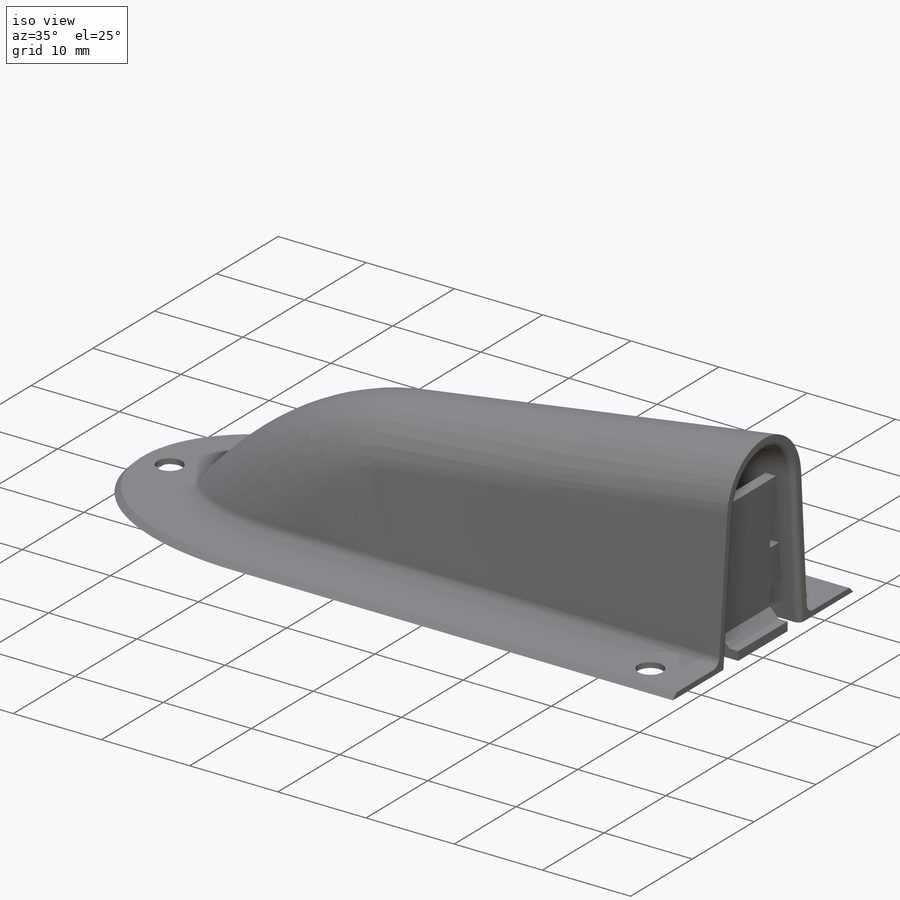
[diagram: iso view]
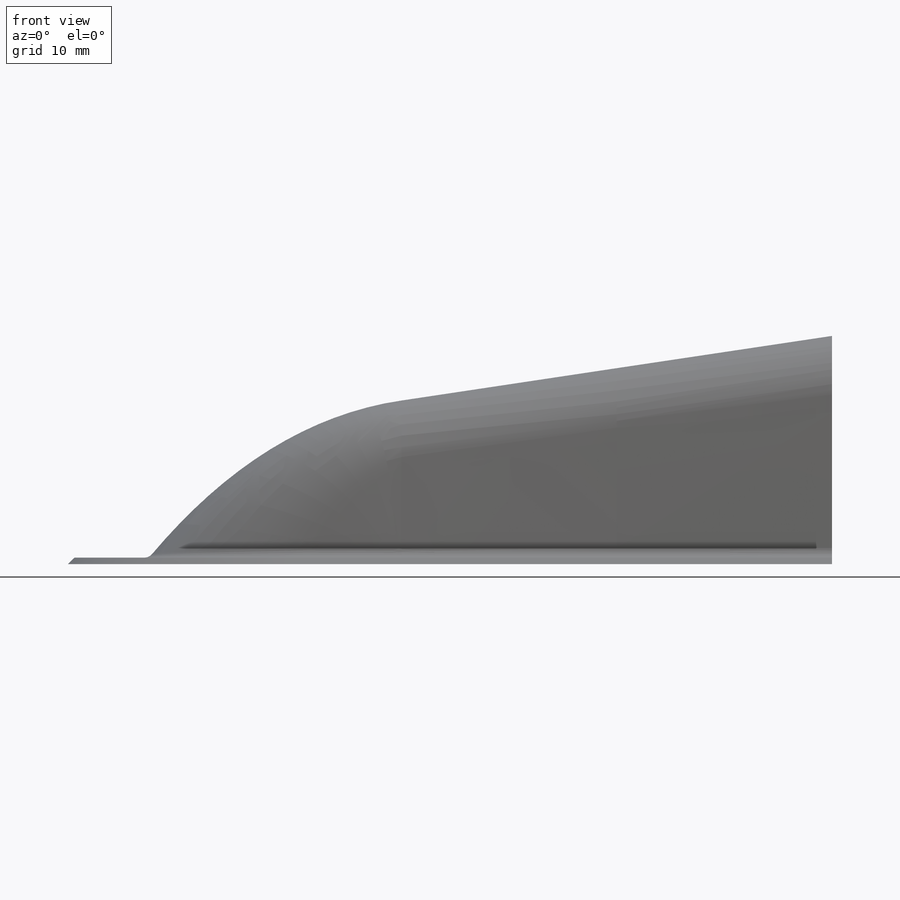
[diagram: front view]
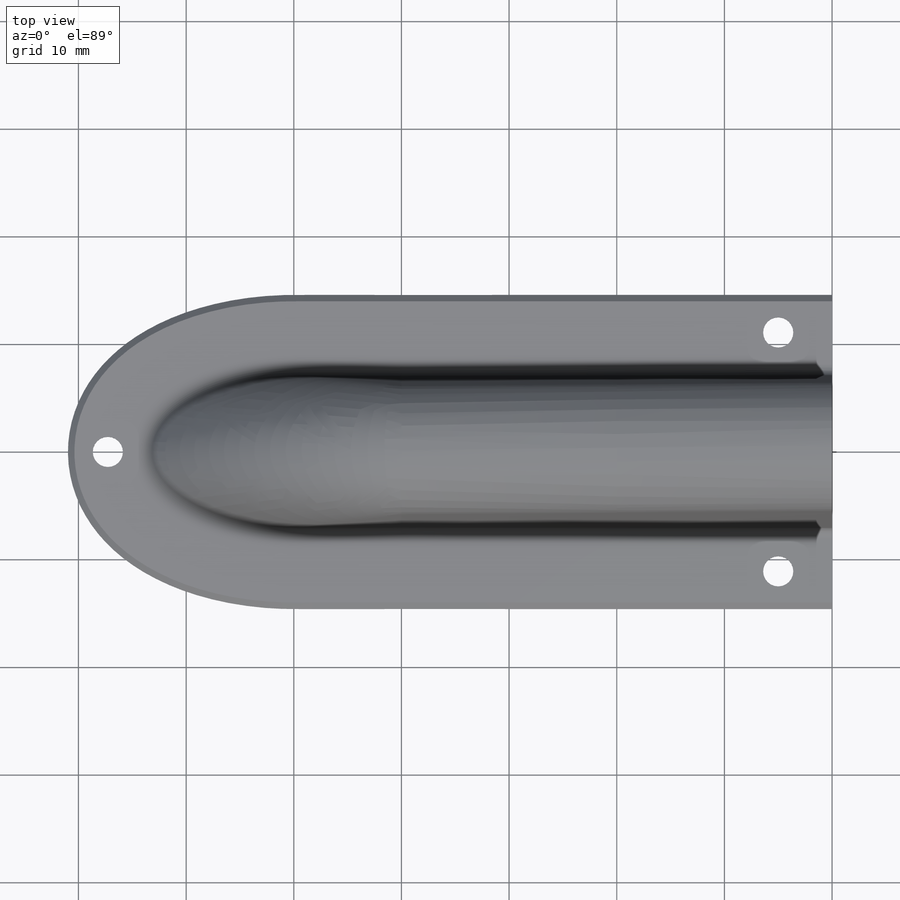
[diagram: top view]
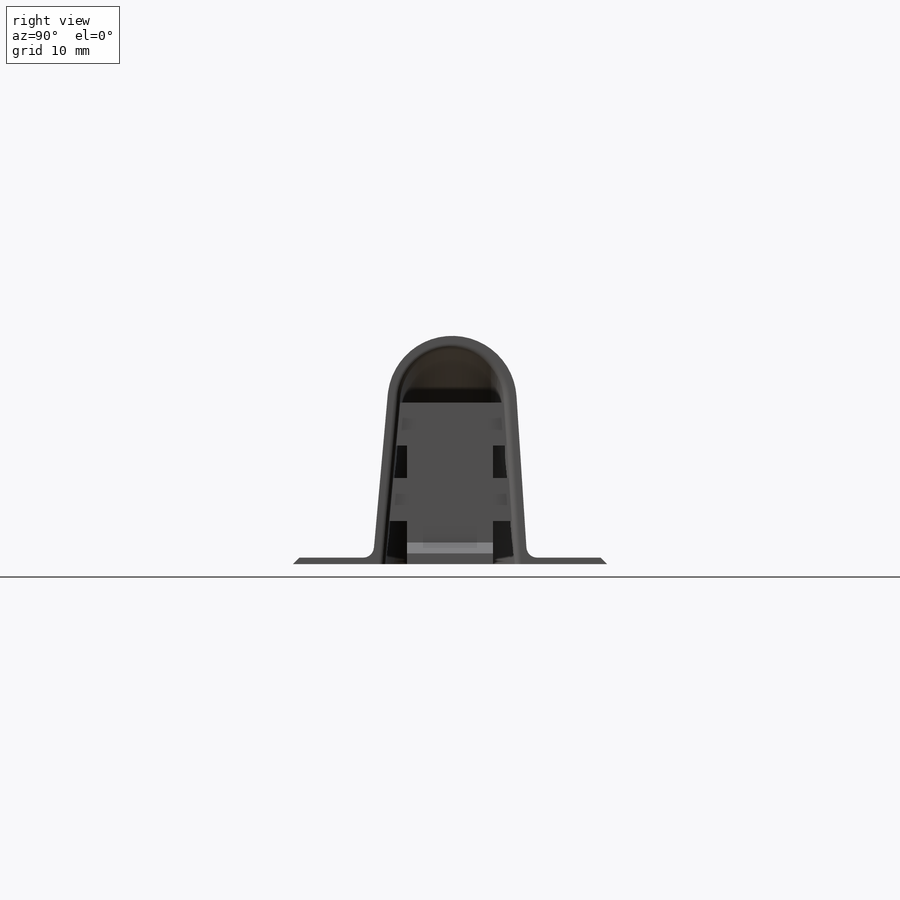
[diagram: right view]
SOLIDWORKS PART (.sldprt)
format: sldprt  version: not decoded by parser v0  size: 556,544 bytes
history: native  units: mm
features: sketch x10, extrude x4, chamfer x2, fillet x2, material x1, plane x1, shell x1, cut_extrude x1 (+12 scaffold rows collapsed)
feature tree (34):
  scaffold x12  (default folders/planes/origin — collapsed)
  material  "Material <not specified>"
  sketch  "Sketch1"  dims[c1.D1=12.4mm c1.D4=6.2mm c2.D1=21.2mm c2.D2=14.4mm c3.D1=6.2mm c3.D3=15.8mm c3.D4=~18.02704mm c4.D3=24.0mm c4.D1=10.0mm c5.D3=22.0mm]
  sketch  "Sketch2"  dims[c1.D1=16.2mm c1.D2=~11.916395mm c1.D3=~5.958198mm c2.D1=8.0mm c2.D2=9.2mm c2.D3=~15.366386mm]
  plane  "Plane1"  Offset=40mm
  sketch  "Sketch3"  dims[D1=21.2mm D2=15.2mm D3=~9.096953mm]
  sketch  "Sketch4"  dims[D1=~67.497694mm]
  sketch  "Sketch2<3>"
  shell  "Shell3"  Thickness=1.2mm
  sketch  "Sketch6"  dims[c1.D3=~8.203215mm c1.D2=8.6mm c1.D1=8.8mm c2.D2=8.8mm c2.D1=8.6mm]
  extrude  "Boss-Extrude1"  Depth=0.6mm
  sketch  "Sketch8"  dims[D1=5.2mm D2=2.0mm D3=2.0mm D4=2.0mm D5=2.0mm]
  extrude  "Boss-Extrude2"  Depth=1mm
  extrude  "Boss-Extrude3"  [1 undecoded]
  sketch  "Sketch8<3>"  dims[D1=15.0mm]
  sketch  "Sketch9"  dims[D1=4.0mm D2=4.0mm]
  extrude  "Boss-Extrude4"  [1 undecoded]
  chamfer  "Chamfer1"  Distance=0.6mm Angle=45deg
  fillet  "Fillet5"  Radius=0.6mm
  fillet  "Fillet7"  Radius=1mm
  sketch  "Sketch7"  dims[c1.D1=2.8mm c1.D2=5.0mm c1.D3=4.5mm c1.D4=4.5mm c1.D5=5.0mm c1.D6=5.0mm c2.D2=3.5mm c2.D3=3.5mm c2.D4=3.5mm c2.D5=~4.999431mm c2.D6=~4.999444mm c3.D2=3.5mm]
  cut_extrude  "Cut-Extrude1"  [1 undecoded]
  chamfer  "Chamfer2"  Distance=1mm Angle=45deg
decode coverage: 16 of 20 modeling features carry decoded parameters
note: ~ marks probable driven/reference dimensions
note: 3 parameter values undecoded
summary: no parameter record found for 3 features
note: suppression state not decoded; provenance and decode notes live in map.json
